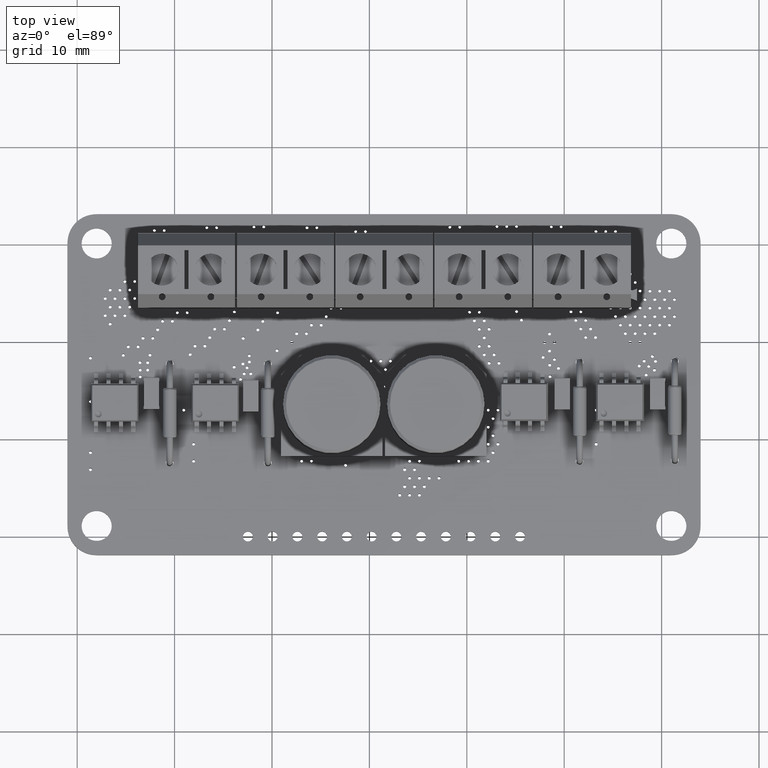
[diagram: clean part render]
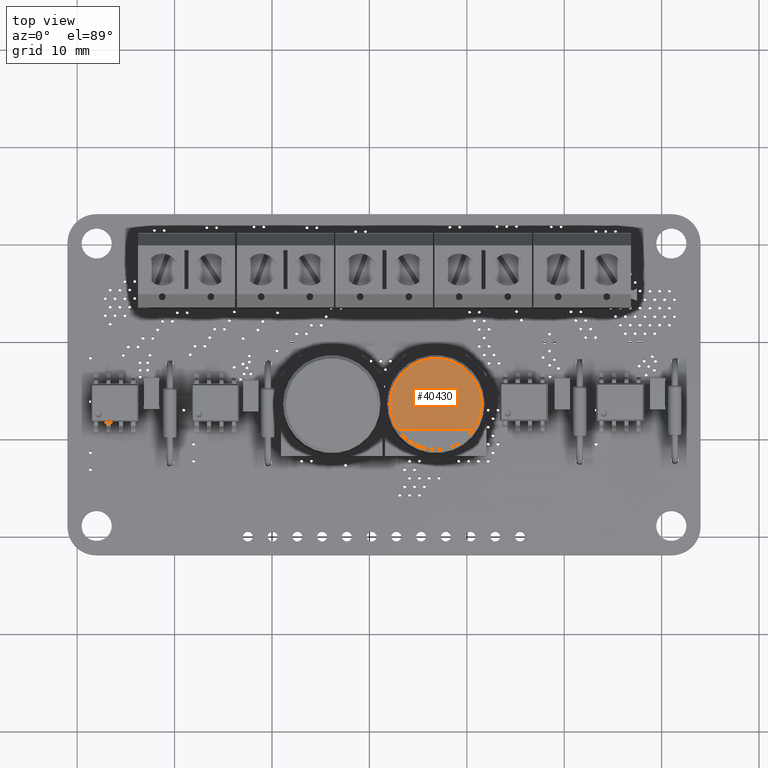
[diagram: same view with one face highlighted and labeled with its STEP entity id]
A machine part, top view. The second image highlights one B-rep face of the part: STEP entity #40430.
In plain terms, the highlighted planar face has unit normal (0, 0, 1).
Its self-contained STEP definition (entity closure, byte-faithful):
#38143 = VERTEX_POINT('',#38144);
#38144 = CARTESIAN_POINT('',(-2.640230447554,-3.888339386397,10.4));
#38165 = EDGE_CURVE('',#38166,#38168,#38170,.T.);
#38166 = VERTEX_POINT('',#38167);
#38167 = CARTESIAN_POINT('',(0.E+000,4.7,10.4));
#38168 = VERTEX_POINT('',#38169);
#38169 = CARTESIAN_POINT('',(5.755839955993E-016,-4.7,10.4));
#38170 = CIRCLE('',#38171,4.7);
#38171 = AXIS2_PLACEMENT_3D('',#38172,#38173,#38174);
#38172 = CARTESIAN_POINT('',(0.E+000,-1.200153863164E-015,10.4));
#38173 = DIRECTION('',(-0.E+000,1.224646799147E-016,-1.));
#38174 = DIRECTION('',(0.E+000,1.,1.224646799147E-016));
#40400 = EDGE_CURVE('',#38168,#38143,#40401,.T.);
#40401 = CIRCLE('',#40402,4.7);
#40402 = AXIS2_PLACEMENT_3D('',#40403,#40404,#40405);
#40403 = CARTESIAN_POINT('',(0.E+000,-1.200153863164E-015,10.4));
#40404 = DIRECTION('',(-0.E+000,1.224646799147E-016,-1.));
#40405 = DIRECTION('',(0.E+000,1.,1.224646799147E-016));
#40409 = VERTEX_POINT('',#40410);
#40410 = CARTESIAN_POINT('',(-2.640230447554,3.888339386397,10.4));
#40417 = EDGE_CURVE('',#40409,#38166,#40418,.T.);
#40418 = CIRCLE('',#40419,4.7);
#40419 = AXIS2_PLACEMENT_3D('',#40420,#40421,#40422);
#40420 = CARTESIAN_POINT('',(0.E+000,-1.200153863164E-015,10.4));
#40421 = DIRECTION('',(-0.E+000,1.224646799147E-016,-1.));
#40422 = DIRECTION('',(0.E+000,1.,1.224646799147E-016));
#40430 = ADVANCED_FACE('',(#40431),#40442,.T.);
#40431 = FACE_BOUND('',#40432,.T.);
#40432 = EDGE_LOOP('',(#40433,#40439,#40440,#40441));
#40433 = ORIENTED_EDGE('',*,*,#40434,.F.);
#40434 = EDGE_CURVE('',#38143,#40409,#40435,.T.);
#40435 = LINE('',#40436,#40437);
#40436 = CARTESIAN_POINT('',(-2.640230447554,3.888339386397,10.4));
#40437 = VECTOR('',#40438,1.);
#40438 = DIRECTION('',(-0.E+000,1.,-0.E+000));
#40439 = ORIENTED_EDGE('',*,*,#40400,.F.);
#40440 = ORIENTED_EDGE('',*,*,#38165,.F.);
#40441 = ORIENTED_EDGE('',*,*,#40417,.F.);
#40442 = PLANE('',#40443);
#40443 = AXIS2_PLACEMENT_3D('',#40444,#40445,#40446);
#40444 = CARTESIAN_POINT('',(0.E+000,4.7,10.4));
#40445 = DIRECTION('',(0.E+000,-1.224646799147E-016,1.));
#40446 = DIRECTION('',(0.E+000,-1.,-1.224646799147E-016));